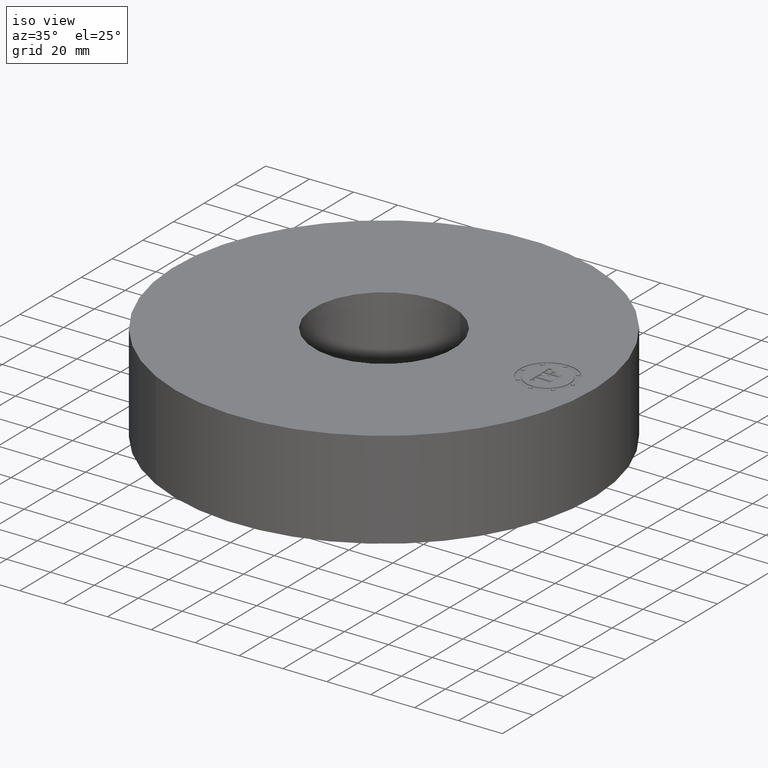
[diagram: clean part render]
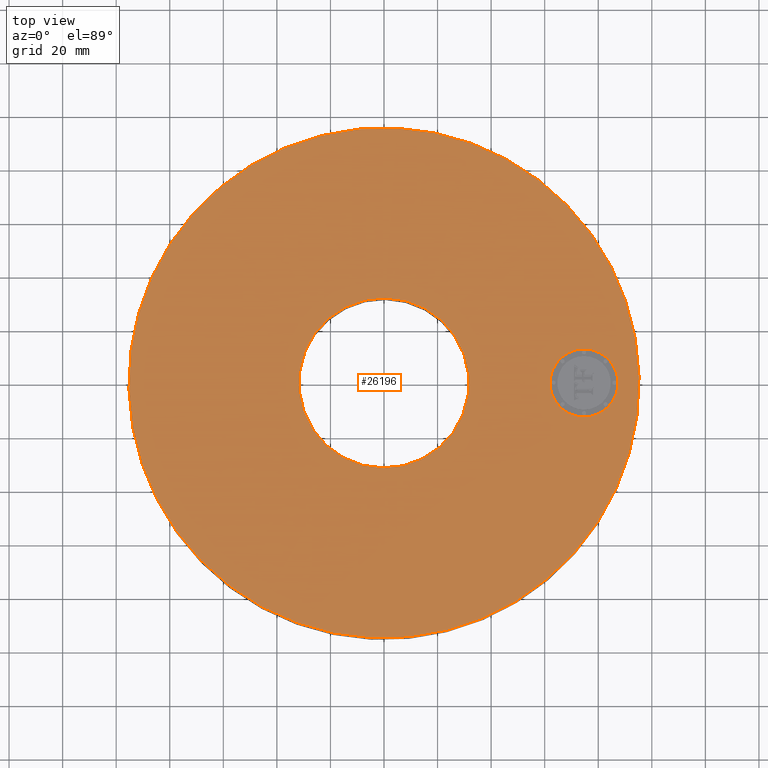
[diagram: tour spotlight — one face highlighted and labeled with its STEP entity id]
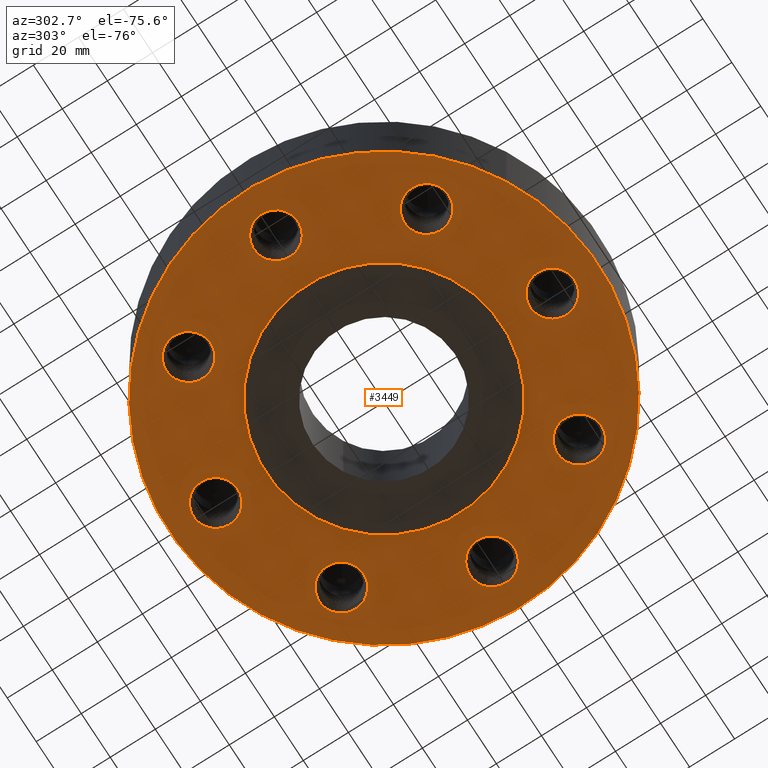
[diagram: tour spotlight — one face highlighted and labeled with its STEP entity id]
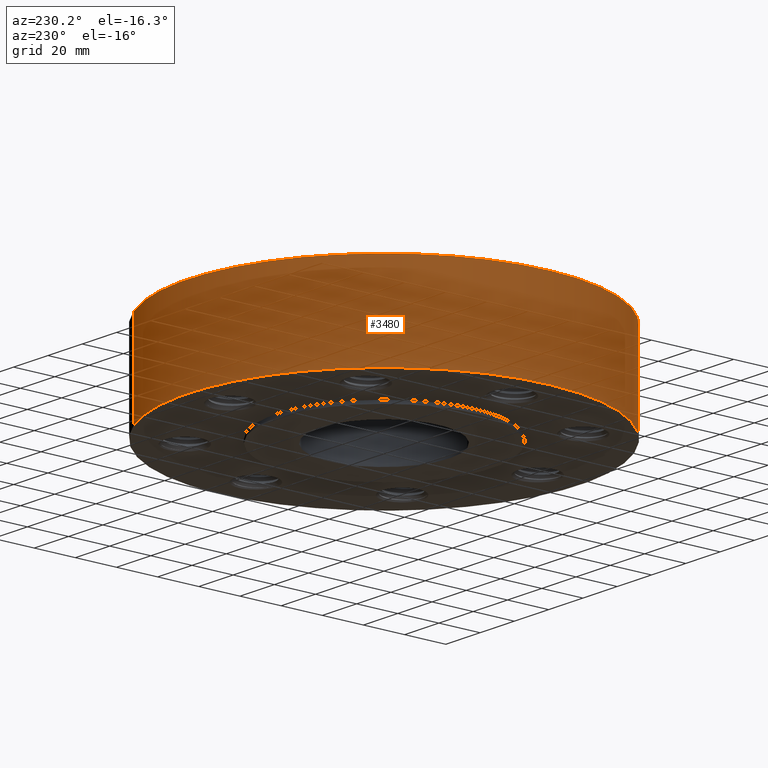
[diagram: tour spotlight — one face highlighted and labeled with its STEP entity id]
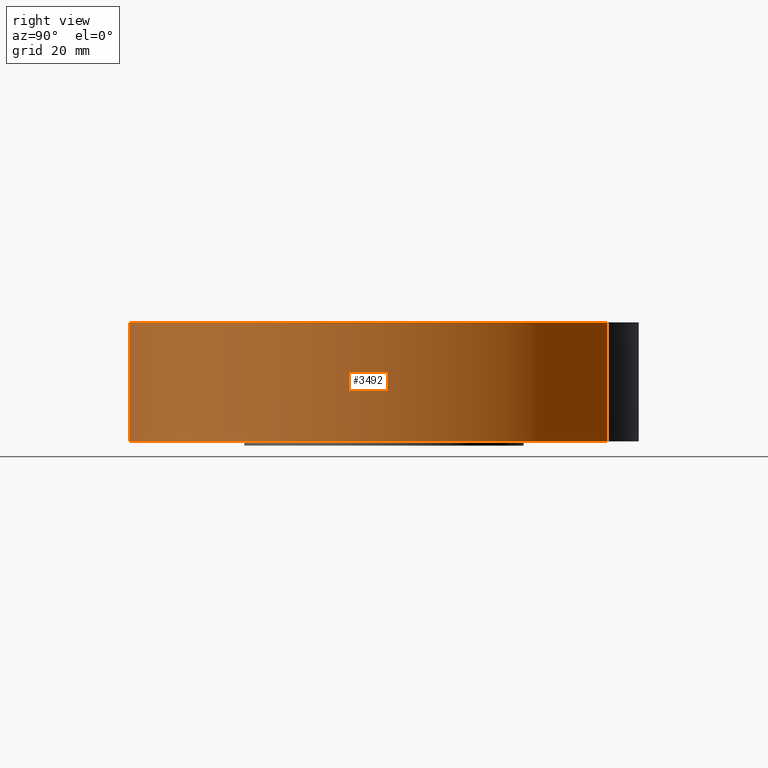
[diagram: tour spotlight — one face highlighted and labeled with its STEP entity id]
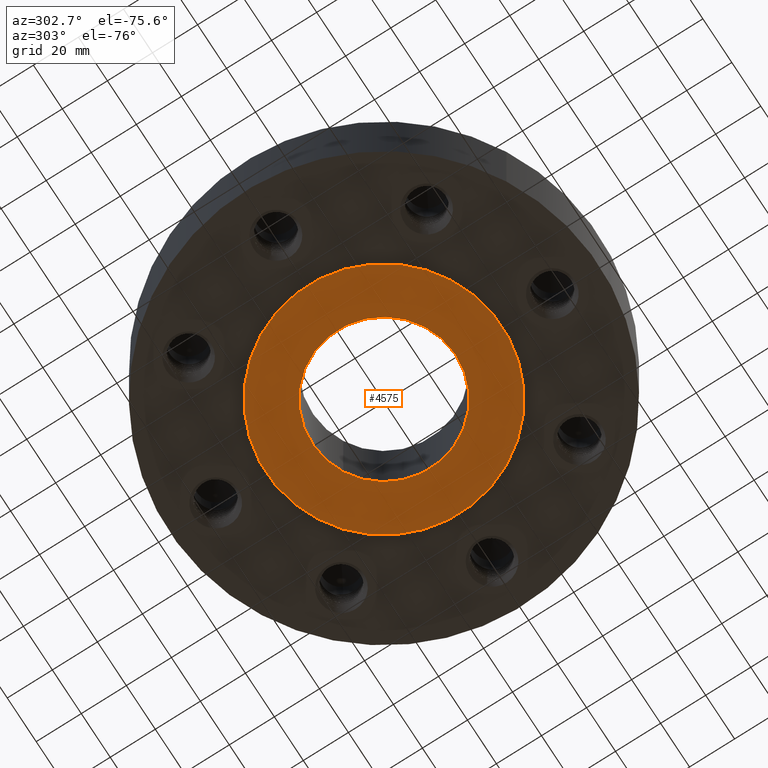
[diagram: tour spotlight — one face highlighted and labeled with its STEP entity id]
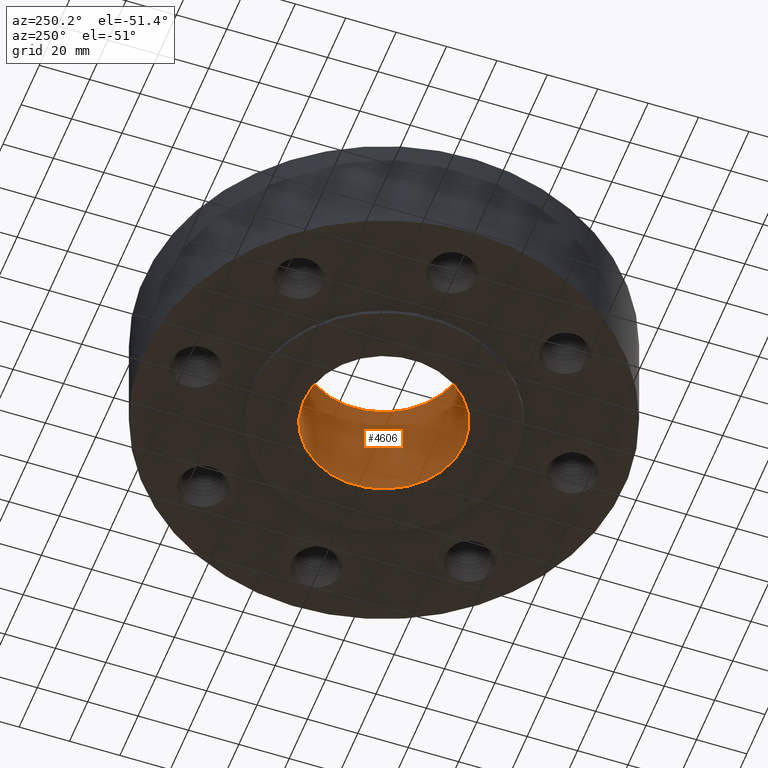
[diagram: tour spotlight — one face highlighted and labeled with its STEP entity id]
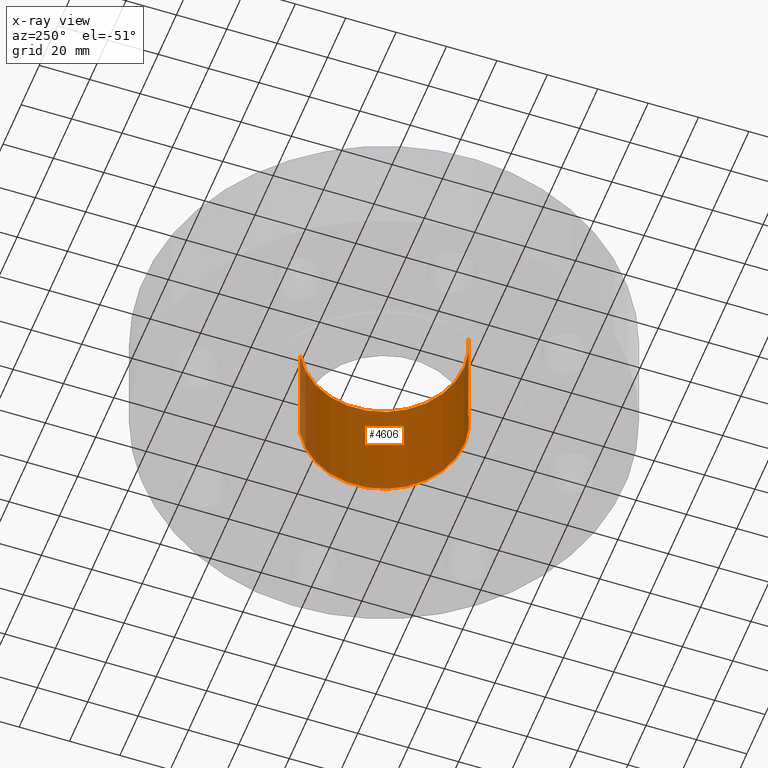
[diagram: x-ray of the same camera — body ghosted, this tour face saturated]
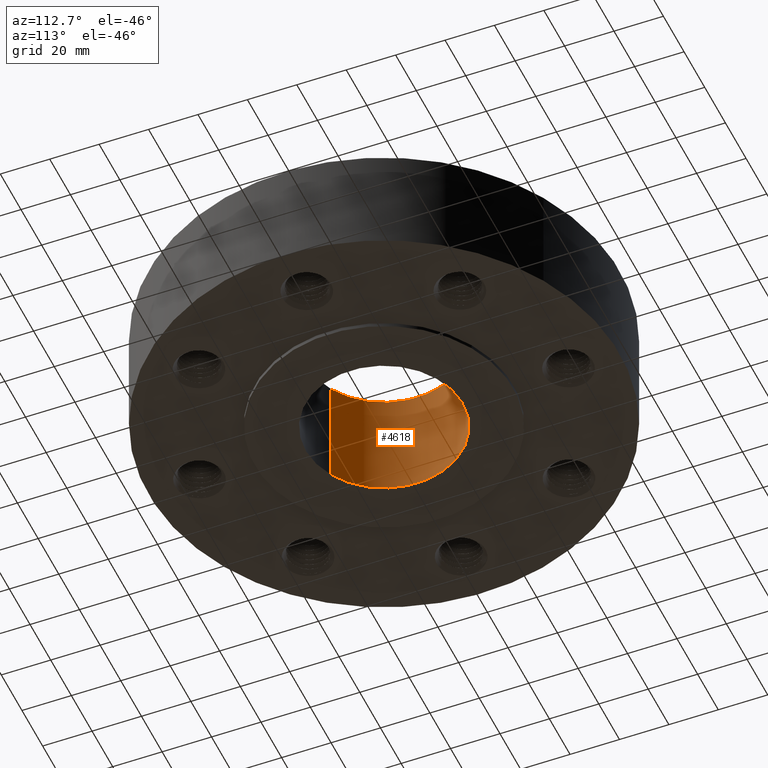
[diagram: tour spotlight — one face highlighted and labeled with its STEP entity id]
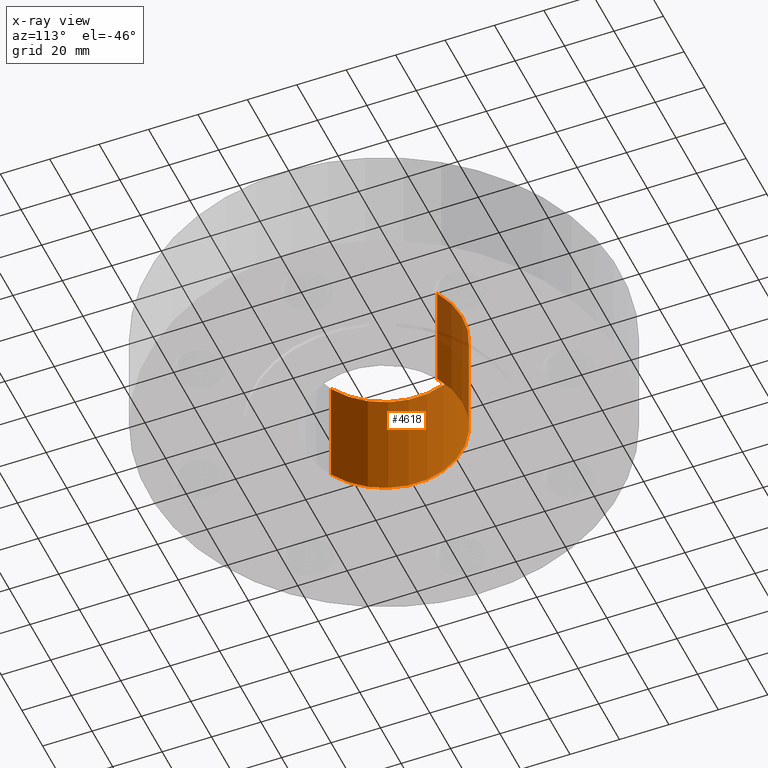
[diagram: x-ray of the same camera — body ghosted, this tour face saturated]
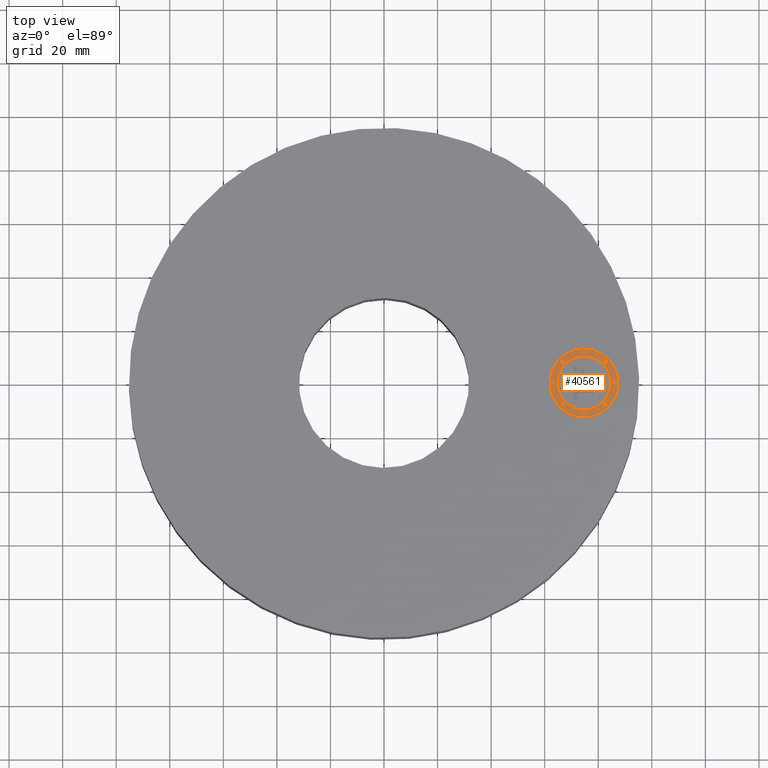
[diagram: tour spotlight — one face highlighted and labeled with its STEP entity id]
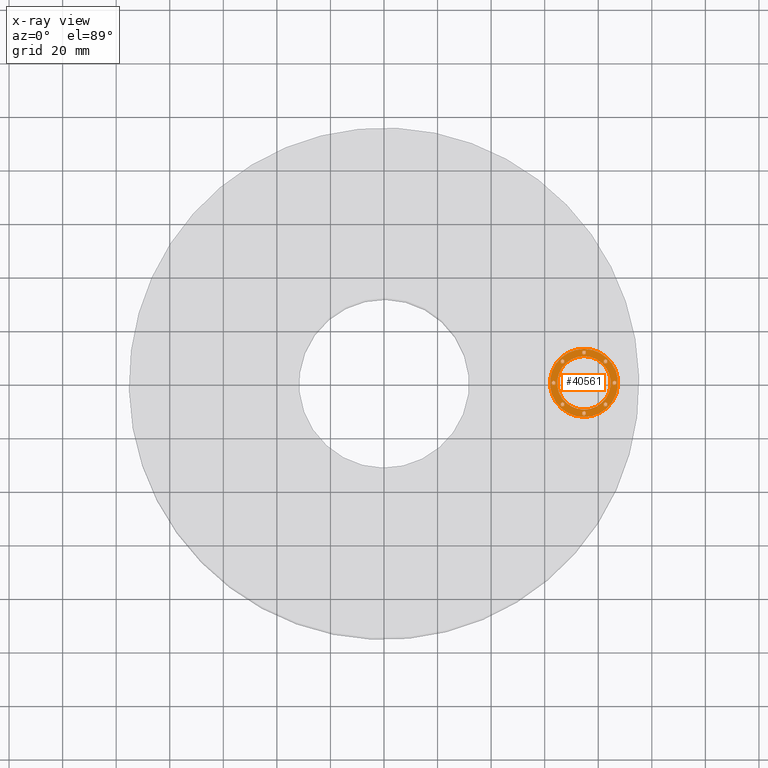
[diagram: x-ray of the same camera — body ghosted, this tour face saturated]
A machine part: a face-by-face anatomy tour. The part has 874 B-rep faces; the first image is the clean iso view, then the 8 largest visible faces are spotlighted one at a time (largest first), each with its STEP entity span.

Face 1 — top view, entity #26196. In plain terms, the highlighted planar face has unit normal (0, 0, -1).
Definition (entity closure, byte-faithful):
#3464=AXIS2_PLACEMENT_3D('Circle Axis2P3D',#3462,#3463,$) ;
#3483=AXIS2_PLACEMENT_3D('Circle Axis2P3D',#3481,#3482,$) ;
#4583=AXIS2_PLACEMENT_3D('Circle Axis2P3D',#4581,#4582,$) ;
#4609=AXIS2_PLACEMENT_3D('Circle Axis2P3D',#4607,#4608,$) ;
#26168=AXIS2_PLACEMENT_3D('Plane Axis2P3D',#26165,#26166,#26167) ;
#26180=AXIS2_PLACEMENT_3D('Circle Axis2P3D',#26178,#26179,$) ;
#26189=AXIS2_PLACEMENT_3D('Circle Axis2P3D',#26187,#26188,$) ;
#3459=CARTESIAN_POINT('Vertex',(-1.79784576977,-3.2909346071,1.75000000001)) ;
#3462=CARTESIAN_POINT('Axis2P3D Location',(0.,0.,1.75000000001)) ;
#3466=CARTESIAN_POINT('Vertex',(1.79784576977,3.2909346071,1.75000000001)) ;
#3481=CARTESIAN_POINT('Axis2P3D Location',(0.,0.,1.75000000001)) ;
#4581=CARTESIAN_POINT('Axis2P3D Location',(0.,0.,1.75000000001)) ;
#4585=CARTESIAN_POINT('Vertex',(0.599281923258,1.09697820237,1.75000000001)) ;
#4587=CARTESIAN_POINT('Vertex',(-0.599281923258,-1.09697820237,1.75000000001)) ;
#4607=CARTESIAN_POINT('Axis2P3D Location',(0.,0.,1.75000000001)) ;
#26165=CARTESIAN_POINT('Axis2P3D Location',(0.,1.25000000001,1.75000000001)) ;
#26178=CARTESIAN_POINT('Axis2P3D Location',(2.94000000001,0.,1.75000000001)) ;
#26182=CARTESIAN_POINT('Vertex',(2.94000000001,-0.499999995002,1.75000000001)) ;
#26184=CARTESIAN_POINT('Vertex',(2.94000000001,0.499999995002,1.75000000001)) ;
#26187=CARTESIAN_POINT('Axis2P3D Location',(2.94000000001,0.,1.75000000001)) ;
#3463=DIRECTION('Axis2P3D Direction',(0.,0.,-0.0393700787402)) ;
#3482=DIRECTION('Axis2P3D Direction',(0.,0.,-0.0393700787402)) ;
#4582=DIRECTION('Axis2P3D Direction',(0.,0.,-0.0393700787402)) ;
#4608=DIRECTION('Axis2P3D Direction',(0.,0.,-0.0393700787402)) ;
#26166=DIRECTION('Axis2P3D Direction',(0.,0.,-0.0393700787402)) ;
#26167=DIRECTION('Axis2P3D XDirection',(0.0393700787402,0.,0.)) ;
#26179=DIRECTION('Axis2P3D Direction',(0.,0.,-0.0393700787402)) ;
#26188=DIRECTION('Axis2P3D Direction',(0.,0.,-0.0393700787402)) ;
#26171=ORIENTED_EDGE('',*,*,#3485,.F.) ;
#26172=ORIENTED_EDGE('',*,*,#3468,.F.) ;
#26175=ORIENTED_EDGE('',*,*,#4611,.T.) ;
#26176=ORIENTED_EDGE('',*,*,#4589,.T.) ;
#26193=ORIENTED_EDGE('',*,*,#26186,.F.) ;
#26194=ORIENTED_EDGE('',*,*,#26191,.F.) ;
#26177=FACE_BOUND('',#26174,.T.) ;
#26195=FACE_BOUND('',#26192,.T.) ;
#26196=ADVANCED_FACE('PartBody',(#26173,#26177,#26195),#26169,.F.) ;
#3465=CIRCLE('generated circle',#3464,3.75000000002) ;
#3484=CIRCLE('generated circle',#3483,3.75000000002) ;
#4584=CIRCLE('generated circle',#4583,1.25000000001) ;
#4610=CIRCLE('generated circle',#4609,1.25000000001) ;
#26181=CIRCLE('generated circle',#26180,0.499999995002) ;
#26190=CIRCLE('generated circle',#26189,0.499999995002) ;
#3468=EDGE_CURVE('',#3460,#3467,#3465,.T.) ;
#3485=EDGE_CURVE('',#3467,#3460,#3484,.T.) ;
#4589=EDGE_CURVE('',#4586,#4588,#4584,.T.) ;
#4611=EDGE_CURVE('',#4588,#4586,#4610,.T.) ;
#26186=EDGE_CURVE('',#26183,#26185,#26181,.F.) ;
#26191=EDGE_CURVE('',#26185,#26183,#26190,.F.) ;
#26170=EDGE_LOOP('',(#26171,#26172)) ;
#26174=EDGE_LOOP('',(#26175,#26176)) ;
#26192=EDGE_LOOP('',(#26193,#26194)) ;
#26173=FACE_OUTER_BOUND('',#26170,.T.) ;
#26169=PLANE('',#26168) ;
#3460=VERTEX_POINT('',#3459) ;
#3467=VERTEX_POINT('',#3466) ;
#4586=VERTEX_POINT('',#4585) ;
#4588=VERTEX_POINT('',#4587) ;
#26183=VERTEX_POINT('',#26182) ;
#26185=VERTEX_POINT('',#26184) ;

Face 2 — auxiliary view, entity #3449. In plain terms, the highlighted planar face has unit normal (0, 0, -1).
Definition (entity closure, byte-faithful):
#3203=AXIS2_PLACEMENT_3D('Circle Axis2P3D',#3201,#3202,$) ;
#3267=AXIS2_PLACEMENT_3D('Circle Axis2P3D',#3265,#3266,$) ;
#3281=AXIS2_PLACEMENT_3D('Plane Axis2P3D',#3278,#3279,#3280) ;
#3285=AXIS2_PLACEMENT_3D('Circle Axis2P3D',#3283,#3284,$) ;
#3294=AXIS2_PLACEMENT_3D('Circle Axis2P3D',#3292,#3293,$) ;
#3307=AXIS2_PLACEMENT_3D('Circle Axis2P3D',#3305,#3306,$) ;
#3316=AXIS2_PLACEMENT_3D('Circle Axis2P3D',#3314,#3315,$) ;
#3325=AXIS2_PLACEMENT_3D('Circle Axis2P3D',#3323,#3324,$) ;
#3334=AXIS2_PLACEMENT_3D('Circle Axis2P3D',#3332,#3333,$) ;
#3343=AXIS2_PLACEMENT_3D('Circle Axis2P3D',#3341,#3342,$) ;
#3352=AXIS2_PLACEMENT_3D('Circle Axis2P3D',#3350,#3351,$) ;
#3361=AXIS2_PLACEMENT_3D('Circle Axis2P3D',#3359,#3360,$) ;
#3370=AXIS2_PLACEMENT_3D('Circle Axis2P3D',#3368,#3369,$) ;
#3379=AXIS2_PLACEMENT_3D('Circle Axis2P3D',#3377,#3378,$) ;
#3388=AXIS2_PLACEMENT_3D('Circle Axis2P3D',#3386,#3387,$) ;
#3397=AXIS2_PLACEMENT_3D('Circle Axis2P3D',#3395,#3396,$) ;
#3406=AXIS2_PLACEMENT_3D('Circle Axis2P3D',#3404,#3405,$) ;
#3415=AXIS2_PLACEMENT_3D('Circle Axis2P3D',#3413,#3414,$) ;
#3424=AXIS2_PLACEMENT_3D('Circle Axis2P3D',#3422,#3423,$) ;
#3433=AXIS2_PLACEMENT_3D('Circle Axis2P3D',#3431,#3432,$) ;
#3442=AXIS2_PLACEMENT_3D('Circle Axis2P3D',#3440,#3441,$) ;
#3198=CARTESIAN_POINT('Vertex',(2.41939597071,2.26491104568,-1.22386790116E-016)) ;
#3201=CARTESIAN_POINT('Axis2P3D Location',(2.0788939367,2.0788939367,0.)) ;
#3205=CARTESIAN_POINT('Vertex',(1.73839190268,1.89287682772,0.)) ;
#3265=CARTESIAN_POINT('Axis2P3D Location',(2.0788939367,2.0788939367,0.)) ;
#3278=CARTESIAN_POINT('Axis2P3D Location',(0.,3.75000000002,0.)) ;
#3283=CARTESIAN_POINT('Axis2P3D Location',(0.,0.,0.)) ;
#3287=CARTESIAN_POINT('Vertex',(-1.79784576977,-3.2909346071,-3.83245491335E-014)) ;
#3289=CARTESIAN_POINT('Vertex',(1.79784576977,3.2909346071,-3.83245491335E-014)) ;
#3292=CARTESIAN_POINT('Axis2P3D Location',(0.,0.,0.)) ;
#3305=CARTESIAN_POINT('Axis2P3D Location',(0.,0.,0.)) ;
#3309=CARTESIAN_POINT('Vertex',(0.987616609529,1.8078200775,-2.81139940724E-014)) ;
#3311=CARTESIAN_POINT('Vertex',(-0.987616609529,-1.8078200775,-2.81139940724E-014)) ;
#3314=CARTESIAN_POINT('Axis2P3D Location',(0.,0.,0.)) ;
#3323=CARTESIAN_POINT('Axis2P3D Location',(2.94000000001,1.1189649382E-015,0.)) ;
#3327=CARTESIAN_POINT('Vertex',(3.31230525645,-0.109237338084,0.)) ;
#3329=CARTESIAN_POINT('Vertex',(2.56769474358,0.109237338084,-8.74191357973E-018)) ;
#3332=CARTESIAN_POINT('Axis2P3D Location',(2.94000000001,1.1189649382E-015,0.)) ;
#3341=CARTESIAN_POINT('Axis2P3D Location',(2.0788939367,-2.0788939367,0.)) ;
#3345=CARTESIAN_POINT('Vertex',(2.26491104568,-2.41939597071,0.)) ;
#3347=CARTESIAN_POINT('Vertex',(1.89287682772,-1.73839190268,0.)) ;
#3350=CARTESIAN_POINT('Axis2P3D Location',(2.0788939367,-2.0788939367,0.)) ;
#3359=CARTESIAN_POINT('Axis2P3D Location',(1.04902962957E-016,-2.94000000001,0.)) ;
#3363=CARTESIAN_POINT('Vertex',(-0.109237338084,-3.31230525645,0.)) ;
#3365=CARTESIAN_POINT('Vertex',(0.109237338084,-2.56769474358,-8.74191357973E-018)) ;
#3368=CARTESIAN_POINT('Axis2P3D Location',(1.1189649382E-015,-2.94000000001,0.)) ;
#3377=CARTESIAN_POINT('Axis2P3D Location',(-2.0788939367,-2.0788939367,0.)) ;
#3381=CARTESIAN_POINT('Vertex',(-2.41939597071,-2.26491104568,0.)) ;
#3383=CARTESIAN_POINT('Vertex',(-1.73839190268,-1.89287682772,-8.74191357973E-018)) ;
#3386=CARTESIAN_POINT('Axis2P3D Location',(-2.0788939367,-2.0788939367,0.)) ;
#3395=CARTESIAN_POINT('Axis2P3D Location',(-2.94000000001,-5.59482469102E-016,0.)) ;
#3399=CARTESIAN_POINT('Vertex',(-3.31230525645,0.109237338084,0.)) ;
#3401=CARTESIAN_POINT('Vertex',(-2.56769474358,-0.109237338084,-8.74191357973E-018)) ;
#3404=CARTESIAN_POINT('Axis2P3D Location',(-2.94000000001,-5.59482469102E-016,0.)) ;
#3413=CARTESIAN_POINT('Axis2P3D Location',(-2.0788939367,2.0788939367,0.)) ;
#3417=CARTESIAN_POINT('Vertex',(-2.26491104568,2.41939597071,0.)) ;
#3419=CARTESIAN_POINT('Vertex',(-1.89287682772,1.73839190268,-8.74191357973E-018)) ;
#3422=CARTESIAN_POINT('Axis2P3D Location',(-2.0788939367,2.0788939367,0.)) ;
#3431=CARTESIAN_POINT('Axis2P3D Location',(-1.15393259252E-015,2.94000000001,0.)) ;
#3435=CARTESIAN_POINT('Vertex',(0.109237338084,3.31230525645,0.)) ;
#3437=CARTESIAN_POINT('Vertex',(-0.109237338084,2.56769474358,0.)) ;
#3440=CARTESIAN_POINT('Axis2P3D Location',(-1.46864148139E-015,2.94000000001,0.)) ;
#3202=DIRECTION('Axis2P3D Direction',(0.,0.,-0.0393700787402)) ;
#3266=DIRECTION('Axis2P3D Direction',(0.,0.,-0.0393700787402)) ;
#3279=DIRECTION('Axis2P3D Direction',(0.,0.,-0.0393700787402)) ;
#3280=DIRECTION('Axis2P3D XDirection',(0.0393700787402,0.,0.)) ;
#3284=DIRECTION('Axis2P3D Direction',(0.,0.,-0.0393700787402)) ;
#3293=DIRECTION('Axis2P3D Direction',(0.,0.,-0.0393700787402)) ;
#3306=DIRECTION('Axis2P3D Direction',(0.,0.,-0.0393700787402)) ;
#3315=DIRECTION('Axis2P3D Direction',(0.,0.,-0.0393700787402)) ;
#3324=DIRECTION('Axis2P3D Direction',(0.,0.,-0.0393700787402)) ;
#3333=DIRECTION('Axis2P3D Direction',(0.,0.,-0.0393700787402)) ;
#3342=DIRECTION('Axis2P3D Direction',(0.,0.,-0.0393700787402)) ;
#3351=DIRECTION('Axis2P3D Direction',(0.,0.,-0.0393700787402)) ;
#3360=DIRECTION('Axis2P3D Direction',(0.,0.,-0.0393700787402)) ;
#3369=DIRECTION('Axis2P3D Direction',(0.,0.,-0.0393700787402)) ;
#3378=DIRECTION('Axis2P3D Direction',(0.,0.,-0.0393700787402)) ;
#3387=DIRECTION('Axis2P3D Direction',(0.,0.,-0.0393700787402)) ;
#3396=DIRECTION('Axis2P3D Direction',(0.,0.,-0.0393700787402)) ;
#3405=DIRECTION('Axis2P3D Direction',(0.,0.,-0.0393700787402)) ;
#3414=DIRECTION('Axis2P3D Direction',(0.,0.,-0.0393700787402)) ;
#3423=DIRECTION('Axis2P3D Direction',(0.,0.,-0.0393700787402)) ;
#3432=DIRECTION('Axis2P3D Direction',(0.,0.,-0.0393700787402)) ;
#3441=DIRECTION('Axis2P3D Direction',(0.,0.,-0.0393700787402)) ;
#3298=ORIENTED_EDGE('',*,*,#3291,.T.) ;
#3299=ORIENTED_EDGE('',*,*,#3296,.T.) ;
#3302=ORIENTED_EDGE('',*,*,#3269,.F.) ;
#3303=ORIENTED_EDGE('',*,*,#3207,.F.) ;
#3320=ORIENTED_EDGE('',*,*,#3313,.F.) ;
#3321=ORIENTED_EDGE('',*,*,#3318,.F.) ;
#3338=ORIENTED_EDGE('',*,*,#3331,.F.) ;
#3339=ORIENTED_EDGE('',*,*,#3336,.F.) ;
#3356=ORIENTED_EDGE('',*,*,#3349,.F.) ;
#3357=ORIENTED_EDGE('',*,*,#3354,.F.) ;
#3374=ORIENTED_EDGE('',*,*,#3367,.F.) ;
#3375=ORIENTED_EDGE('',*,*,#3372,.F.) ;
#3392=ORIENTED_EDGE('',*,*,#3385,.F.) ;
#3393=ORIENTED_EDGE('',*,*,#3390,.F.) ;
#3410=ORIENTED_EDGE('',*,*,#3403,.F.) ;
#3411=ORIENTED_EDGE('',*,*,#3408,.F.) ;
#3428=ORIENTED_EDGE('',*,*,#3421,.F.) ;
#3429=ORIENTED_EDGE('',*,*,#3426,.F.) ;
#3446=ORIENTED_EDGE('',*,*,#3439,.F.) ;
#3447=ORIENTED_EDGE('',*,*,#3444,.F.) ;
#3304=FACE_BOUND('',#3301,.T.) ;
#3322=FACE_BOUND('',#3319,.T.) ;
#3340=FACE_BOUND('',#3337,.T.) ;
#3358=FACE_BOUND('',#3355,.T.) ;
#3376=FACE_BOUND('',#3373,.T.) ;
#3394=FACE_BOUND('',#3391,.T.) ;
#3412=FACE_BOUND('',#3409,.T.) ;
#3430=FACE_BOUND('',#3427,.T.) ;
#3448=FACE_BOUND('',#3445,.T.) ;
#3449=ADVANCED_FACE('PartBody',(#3300,#3304,#3322,#3340,#3358,#3376,#3394,#3412,#3430,#3448),#3282,.T.) ;
#3204=CIRCLE('generated circle',#3203,0.388000000002) ;
#3268=CIRCLE('generated circle',#3267,0.388000000002) ;
#3286=CIRCLE('generated circle',#3285,3.75000000002) ;
#3295=CIRCLE('generated circle',#3294,3.75000000002) ;
#3308=CIRCLE('generated circle',#3307,2.06000000001) ;
#3317=CIRCLE('generated circle',#3316,2.06000000001) ;
#3326=CIRCLE('generated circle',#3325,0.388000000002) ;
#3335=CIRCLE('generated circle',#3334,0.388000000002) ;
#3344=CIRCLE('generated circle',#3343,0.388000000002) ;
#3353=CIRCLE('generated circle',#3352,0.388000000002) ;
#3362=CIRCLE('generated circle',#3361,0.388000000002) ;
#3371=CIRCLE('generated circle',#3370,0.388000000002) ;
#3380=CIRCLE('generated circle',#3379,0.388000000002) ;
#3389=CIRCLE('generated circle',#3388,0.388000000002) ;
#3398=CIRCLE('generated circle',#3397,0.388000000002) ;
#3407=CIRCLE('generated circle',#3406,0.388000000002) ;
#3416=CIRCLE('generated circle',#3415,0.388000000002) ;
#3425=CIRCLE('generated circle',#3424,0.388000000002) ;
#3434=CIRCLE('generated circle',#3433,0.388000000002) ;
#3443=CIRCLE('generated circle',#3442,0.388000000002) ;
#3207=EDGE_CURVE('',#3199,#3206,#3204,.T.) ;
#3269=EDGE_CURVE('',#3206,#3199,#3268,.T.) ;
#3291=EDGE_CURVE('',#3288,#3290,#3286,.T.) ;
#3296=EDGE_CURVE('',#3290,#3288,#3295,.T.) ;
#3313=EDGE_CURVE('',#3310,#3312,#3308,.T.) ;
#3318=EDGE_CURVE('',#3312,#3310,#3317,.T.) ;
#3331=EDGE_CURVE('',#3328,#3330,#3326,.T.) ;
#3336=EDGE_CURVE('',#3330,#3328,#3335,.T.) ;
#3349=EDGE_CURVE('',#3346,#3348,#3344,.T.) ;
#3354=EDGE_CURVE('',#3348,#3346,#3353,.T.) ;
#3367=EDGE_CURVE('',#3364,#3366,#3362,.T.) ;
#3372=EDGE_CURVE('',#3366,#3364,#3371,.T.) ;
#3385=EDGE_CURVE('',#3382,#3384,#3380,.T.) ;
#3390=EDGE_CURVE('',#3384,#3382,#3389,.T.) ;
#3403=EDGE_CURVE('',#3400,#3402,#3398,.T.) ;
#3408=EDGE_CURVE('',#3402,#3400,#3407,.T.) ;
#3421=EDGE_CURVE('',#3418,#3420,#3416,.T.) ;
#3426=EDGE_CURVE('',#3420,#3418,#3425,.T.) ;
#3439=EDGE_CURVE('',#3436,#3438,#3434,.T.) ;
#3444=EDGE_CURVE('',#3438,#3436,#3443,.T.) ;
#3297=EDGE_LOOP('',(#3298,#3299)) ;
#3301=EDGE_LOOP('',(#3302,#3303)) ;
#3319=EDGE_LOOP('',(#3320,#3321)) ;
#3337=EDGE_LOOP('',(#3338,#3339)) ;
#3355=EDGE_LOOP('',(#3356,#3357)) ;
#3373=EDGE_LOOP('',(#3374,#3375)) ;
#3391=EDGE_LOOP('',(#3392,#3393)) ;
#3409=EDGE_LOOP('',(#3410,#3411)) ;
#3427=EDGE_LOOP('',(#3428,#3429)) ;
#3445=EDGE_LOOP('',(#3446,#3447)) ;
#3300=FACE_OUTER_BOUND('',#3297,.T.) ;
#3282=PLANE('',#3281) ;
#3199=VERTEX_POINT('',#3198) ;
#3206=VERTEX_POINT('',#3205) ;
#3288=VERTEX_POINT('',#3287) ;
#3290=VERTEX_POINT('',#3289) ;
#3310=VERTEX_POINT('',#3309) ;
#3312=VERTEX_POINT('',#3311) ;
#3328=VERTEX_POINT('',#3327) ;
#3330=VERTEX_POINT('',#3329) ;
#3346=VERTEX_POINT('',#3345) ;
#3348=VERTEX_POINT('',#3347) ;
#3364=VERTEX_POINT('',#3363) ;
#3366=VERTEX_POINT('',#3365) ;
#3382=VERTEX_POINT('',#3381) ;
#3384=VERTEX_POINT('',#3383) ;
#3400=VERTEX_POINT('',#3399) ;
#3402=VERTEX_POINT('',#3401) ;
#3418=VERTEX_POINT('',#3417) ;
#3420=VERTEX_POINT('',#3419) ;
#3436=VERTEX_POINT('',#3435) ;
#3438=VERTEX_POINT('',#3437) ;

Face 3 — auxiliary view, entity #3480. In plain terms, the highlighted cylindrical surface (partial cylindrical patch) has radius 95.25 mm, axis along (0, 0, -1).
Definition (entity closure, byte-faithful):
#3285=AXIS2_PLACEMENT_3D('Circle Axis2P3D',#3283,#3284,$) ;
#3453=AXIS2_PLACEMENT_3D('Cylinder Axis2P3D',#3450,#3451,#3452) ;
#3464=AXIS2_PLACEMENT_3D('Circle Axis2P3D',#3462,#3463,$) ;
#3283=CARTESIAN_POINT('Axis2P3D Location',(0.,0.,0.)) ;
#3287=CARTESIAN_POINT('Vertex',(-1.79784576977,-3.2909346071,-3.83245491335E-014)) ;
#3289=CARTESIAN_POINT('Vertex',(1.79784576977,3.2909346071,-3.83245491335E-014)) ;
#3450=CARTESIAN_POINT('Axis2P3D Location',(0.,0.,0.843750000003)) ;
#3455=CARTESIAN_POINT('Line Origine',(-1.79784576977,-3.2909346071,0.875000000003)) ;
#3459=CARTESIAN_POINT('Vertex',(-1.79784576977,-3.2909346071,1.75000000001)) ;
#3462=CARTESIAN_POINT('Axis2P3D Location',(0.,0.,1.75000000001)) ;
#3466=CARTESIAN_POINT('Vertex',(1.79784576977,3.2909346071,1.75000000001)) ;
#3469=CARTESIAN_POINT('Line Origine',(1.79784576977,3.2909346071,0.875000000003)) ;
#3284=DIRECTION('Axis2P3D Direction',(0.,0.,-0.0393700787402)) ;
#3451=DIRECTION('Axis2P3D Direction',(0.,0.,-0.0393700787402)) ;
#3452=DIRECTION('Axis2P3D XDirection',(0.0188750212049,0.0345504945626,0.)) ;
#3456=DIRECTION('Vector Direction',(0.,0.,-0.0393700787402)) ;
#3463=DIRECTION('Axis2P3D Direction',(0.,0.,-0.0393700787402)) ;
#3470=DIRECTION('Vector Direction',(0.,0.,-0.0393700787402)) ;
#3457=VECTOR('Line Direction',#3456,0.0393700787402) ;
#3471=VECTOR('Line Direction',#3470,0.0393700787402) ;
#3475=ORIENTED_EDGE('',*,*,#3291,.F.) ;
#3476=ORIENTED_EDGE('',*,*,#3461,.T.) ;
#3477=ORIENTED_EDGE('',*,*,#3468,.T.) ;
#3478=ORIENTED_EDGE('',*,*,#3473,.F.) ;
#3480=ADVANCED_FACE('PartBody',(#3479),#3454,.T.) ;
#3286=CIRCLE('generated circle',#3285,3.75000000002) ;
#3465=CIRCLE('generated circle',#3464,3.75000000002) ;
#3454=CYLINDRICAL_SURFACE('generated cylinder',#3453,3.75000000002) ;
#3291=EDGE_CURVE('',#3288,#3290,#3286,.T.) ;
#3461=EDGE_CURVE('',#3288,#3460,#3458,.F.) ;
#3468=EDGE_CURVE('',#3460,#3467,#3465,.T.) ;
#3473=EDGE_CURVE('',#3290,#3467,#3472,.F.) ;
#3474=EDGE_LOOP('',(#3475,#3476,#3477,#3478)) ;
#3479=FACE_OUTER_BOUND('',#3474,.T.) ;
#3458=LINE('Line',#3455,#3457) ;
#3472=LINE('Line',#3469,#3471) ;
#3288=VERTEX_POINT('',#3287) ;
#3290=VERTEX_POINT('',#3289) ;
#3460=VERTEX_POINT('',#3459) ;
#3467=VERTEX_POINT('',#3466) ;

Face 4 — right view, entity #3492. In plain terms, the highlighted cylindrical surface (partial cylindrical patch) has radius 95.25 mm, axis along (0, 0, -1).
Definition (entity closure, byte-faithful):
#3294=AXIS2_PLACEMENT_3D('Circle Axis2P3D',#3292,#3293,$) ;
#3453=AXIS2_PLACEMENT_3D('Cylinder Axis2P3D',#3450,#3451,#3452) ;
#3483=AXIS2_PLACEMENT_3D('Circle Axis2P3D',#3481,#3482,$) ;
#3287=CARTESIAN_POINT('Vertex',(-1.79784576977,-3.2909346071,-3.83245491335E-014)) ;
#3289=CARTESIAN_POINT('Vertex',(1.79784576977,3.2909346071,-3.83245491335E-014)) ;
#3292=CARTESIAN_POINT('Axis2P3D Location',(0.,0.,0.)) ;
#3450=CARTESIAN_POINT('Axis2P3D Location',(0.,0.,0.843750000003)) ;
#3455=CARTESIAN_POINT('Line Origine',(-1.79784576977,-3.2909346071,0.875000000003)) ;
#3459=CARTESIAN_POINT('Vertex',(-1.79784576977,-3.2909346071,1.75000000001)) ;
#3466=CARTESIAN_POINT('Vertex',(1.79784576977,3.2909346071,1.75000000001)) ;
#3469=CARTESIAN_POINT('Line Origine',(1.79784576977,3.2909346071,0.875000000003)) ;
#3481=CARTESIAN_POINT('Axis2P3D Location',(0.,0.,1.75000000001)) ;
#3293=DIRECTION('Axis2P3D Direction',(0.,0.,-0.0393700787402)) ;
#3451=DIRECTION('Axis2P3D Direction',(0.,0.,-0.0393700787402)) ;
#3452=DIRECTION('Axis2P3D XDirection',(0.0188750212049,0.0345504945626,0.)) ;
#3456=DIRECTION('Vector Direction',(0.,0.,-0.0393700787402)) ;
#3470=DIRECTION('Vector Direction',(0.,0.,-0.0393700787402)) ;
#3482=DIRECTION('Axis2P3D Direction',(0.,0.,-0.0393700787402)) ;
#3457=VECTOR('Line Direction',#3456,0.0393700787402) ;
#3471=VECTOR('Line Direction',#3470,0.0393700787402) ;
#3487=ORIENTED_EDGE('',*,*,#3296,.F.) ;
#3488=ORIENTED_EDGE('',*,*,#3473,.T.) ;
#3489=ORIENTED_EDGE('',*,*,#3485,.T.) ;
#3490=ORIENTED_EDGE('',*,*,#3461,.F.) ;
#3492=ADVANCED_FACE('PartBody',(#3491),#3454,.T.) ;
#3295=CIRCLE('generated circle',#3294,3.75000000002) ;
#3484=CIRCLE('generated circle',#3483,3.75000000002) ;
#3454=CYLINDRICAL_SURFACE('generated cylinder',#3453,3.75000000002) ;
#3296=EDGE_CURVE('',#3290,#3288,#3295,.T.) ;
#3461=EDGE_CURVE('',#3288,#3460,#3458,.F.) ;
#3473=EDGE_CURVE('',#3290,#3467,#3472,.F.) ;
#3485=EDGE_CURVE('',#3467,#3460,#3484,.T.) ;
#3486=EDGE_LOOP('',(#3487,#3488,#3489,#3490)) ;
#3491=FACE_OUTER_BOUND('',#3486,.T.) ;
#3458=LINE('Line',#3455,#3457) ;
#3472=LINE('Line',#3469,#3471) ;
#3288=VERTEX_POINT('',#3287) ;
#3290=VERTEX_POINT('',#3289) ;
#3460=VERTEX_POINT('',#3459) ;
#3467=VERTEX_POINT('',#3466) ;

Face 5 — auxiliary view, entity #4575. In plain terms, the highlighted planar face has unit normal (0, 0, -1).
Definition (entity closure, byte-faithful):
#3500=AXIS2_PLACEMENT_3D('Circle Axis2P3D',#3498,#3499,$) ;
#3526=AXIS2_PLACEMENT_3D('Circle Axis2P3D',#3524,#3525,$) ;
#4551=AXIS2_PLACEMENT_3D('Plane Axis2P3D',#4548,#4549,#4550) ;
#4559=AXIS2_PLACEMENT_3D('Circle Axis2P3D',#4557,#4558,$) ;
#4568=AXIS2_PLACEMENT_3D('Circle Axis2P3D',#4566,#4567,$) ;
#3498=CARTESIAN_POINT('Axis2P3D Location',(0.,0.,-0.0625000000003)) ;
#3502=CARTESIAN_POINT('Vertex',(0.987616609529,1.8078200775,-0.0625000000003)) ;
#3504=CARTESIAN_POINT('Vertex',(-0.987616609529,-1.8078200775,-0.0625000000003)) ;
#3524=CARTESIAN_POINT('Axis2P3D Location',(0.,0.,-0.0625000000003)) ;
#4548=CARTESIAN_POINT('Axis2P3D Location',(0.,2.06000000001,-0.0625000000003)) ;
#4557=CARTESIAN_POINT('Axis2P3D Location',(0.,0.,-0.0625000000003)) ;
#4561=CARTESIAN_POINT('Vertex',(0.599281923258,1.09697820237,-0.0625000000003)) ;
#4563=CARTESIAN_POINT('Vertex',(-0.599281923258,-1.09697820237,-0.0625000000003)) ;
#4566=CARTESIAN_POINT('Axis2P3D Location',(0.,0.,-0.0625000000003)) ;
#3499=DIRECTION('Axis2P3D Direction',(0.,0.,-0.0393700787402)) ;
#3525=DIRECTION('Axis2P3D Direction',(0.,0.,-0.0393700787402)) ;
#4549=DIRECTION('Axis2P3D Direction',(0.,0.,-0.0393700787402)) ;
#4550=DIRECTION('Axis2P3D XDirection',(0.0393700787402,0.,0.)) ;
#4558=DIRECTION('Axis2P3D Direction',(0.,0.,-0.0393700787402)) ;
#4567=DIRECTION('Axis2P3D Direction',(0.,0.,-0.0393700787402)) ;
#4554=ORIENTED_EDGE('',*,*,#3528,.T.) ;
#4555=ORIENTED_EDGE('',*,*,#3506,.T.) ;
#4572=ORIENTED_EDGE('',*,*,#4565,.F.) ;
#4573=ORIENTED_EDGE('',*,*,#4570,.F.) ;
#4574=FACE_BOUND('',#4571,.T.) ;
#4575=ADVANCED_FACE('PartBody',(#4556,#4574),#4552,.T.) ;
#3501=CIRCLE('generated circle',#3500,2.06000000001) ;
#3527=CIRCLE('generated circle',#3526,2.06000000001) ;
#4560=CIRCLE('generated circle',#4559,1.25000000001) ;
#4569=CIRCLE('generated circle',#4568,1.25000000001) ;
#3506=EDGE_CURVE('',#3503,#3505,#3501,.T.) ;
#3528=EDGE_CURVE('',#3505,#3503,#3527,.T.) ;
#4565=EDGE_CURVE('',#4562,#4564,#4560,.T.) ;
#4570=EDGE_CURVE('',#4564,#4562,#4569,.T.) ;
#4553=EDGE_LOOP('',(#4554,#4555)) ;
#4571=EDGE_LOOP('',(#4572,#4573)) ;
#4556=FACE_OUTER_BOUND('',#4553,.T.) ;
#4552=PLANE('',#4551) ;
#3503=VERTEX_POINT('',#3502) ;
#3505=VERTEX_POINT('',#3504) ;
#4562=VERTEX_POINT('',#4561) ;
#4564=VERTEX_POINT('',#4563) ;

Face 6 — auxiliary view, entity #4606. An x-ray twin of the same camera follows (body ghosted, this face saturated) — the face is partly hidden behind the body. In plain terms, the highlighted cylindrical surface (partial cylindrical patch) has radius 31.75 mm, axis along (0, 0, -1).
Definition (entity closure, byte-faithful):
#4559=AXIS2_PLACEMENT_3D('Circle Axis2P3D',#4557,#4558,$) ;
#4579=AXIS2_PLACEMENT_3D('Cylinder Axis2P3D',#4576,#4577,#4578) ;
#4583=AXIS2_PLACEMENT_3D('Circle Axis2P3D',#4581,#4582,$) ;
#4557=CARTESIAN_POINT('Axis2P3D Location',(0.,0.,-0.0625000000003)) ;
#4561=CARTESIAN_POINT('Vertex',(0.599281923258,1.09697820237,-0.0625000000003)) ;
#4563=CARTESIAN_POINT('Vertex',(-0.599281923258,-1.09697820237,-0.0625000000003)) ;
#4576=CARTESIAN_POINT('Axis2P3D Location',(0.,0.,0.843750000003)) ;
#4581=CARTESIAN_POINT('Axis2P3D Location',(0.,0.,1.75000000001)) ;
#4585=CARTESIAN_POINT('Vertex',(0.599281923258,1.09697820237,1.75000000001)) ;
#4587=CARTESIAN_POINT('Vertex',(-0.599281923258,-1.09697820237,1.75000000001)) ;
#4590=CARTESIAN_POINT('Line Origine',(0.599281923258,1.09697820237,0.843750000003)) ;
#4595=CARTESIAN_POINT('Line Origine',(-0.599281923258,-1.09697820237,0.843750000003)) ;
#4558=DIRECTION('Axis2P3D Direction',(0.,0.,-0.0393700787402)) ;
#4577=DIRECTION('Axis2P3D Direction',(0.,0.,-0.0393700787402)) ;
#4578=DIRECTION('Axis2P3D XDirection',(-0.0188750212049,-0.0345504945626,0.)) ;
#4582=DIRECTION('Axis2P3D Direction',(0.,0.,-0.0393700787402)) ;
#4591=DIRECTION('Vector Direction',(0.,0.,-0.0393700787402)) ;
#4596=DIRECTION('Vector Direction',(0.,0.,-0.0393700787402)) ;
#4592=VECTOR('Line Direction',#4591,0.0393700787402) ;
#4597=VECTOR('Line Direction',#4596,0.0393700787402) ;
#4601=ORIENTED_EDGE('',*,*,#4589,.F.) ;
#4602=ORIENTED_EDGE('',*,*,#4594,.T.) ;
#4603=ORIENTED_EDGE('',*,*,#4565,.T.) ;
#4604=ORIENTED_EDGE('',*,*,#4599,.F.) ;
#4606=ADVANCED_FACE('PartBody',(#4605),#4580,.F.) ;
#4560=CIRCLE('generated circle',#4559,1.25000000001) ;
#4584=CIRCLE('generated circle',#4583,1.25000000001) ;
#4580=CYLINDRICAL_SURFACE('generated cylinder',#4579,1.25000000001) ;
#4565=EDGE_CURVE('',#4562,#4564,#4560,.T.) ;
#4589=EDGE_CURVE('',#4586,#4588,#4584,.T.) ;
#4594=EDGE_CURVE('',#4586,#4562,#4593,.T.) ;
#4599=EDGE_CURVE('',#4588,#4564,#4598,.T.) ;
#4600=EDGE_LOOP('',(#4601,#4602,#4603,#4604)) ;
#4605=FACE_OUTER_BOUND('',#4600,.T.) ;
#4593=LINE('Line',#4590,#4592) ;
#4598=LINE('Line',#4595,#4597) ;
#4562=VERTEX_POINT('',#4561) ;
#4564=VERTEX_POINT('',#4563) ;
#4586=VERTEX_POINT('',#4585) ;
#4588=VERTEX_POINT('',#4587) ;

Face 7 — auxiliary view, entity #4618. An x-ray twin of the same camera follows (body ghosted, this face saturated) — the face is partly hidden behind the body. In plain terms, the highlighted cylindrical surface (partial cylindrical patch) has radius 31.75 mm, axis along (0, 0, -1).
Definition (entity closure, byte-faithful):
#4568=AXIS2_PLACEMENT_3D('Circle Axis2P3D',#4566,#4567,$) ;
#4579=AXIS2_PLACEMENT_3D('Cylinder Axis2P3D',#4576,#4577,#4578) ;
#4609=AXIS2_PLACEMENT_3D('Circle Axis2P3D',#4607,#4608,$) ;
#4561=CARTESIAN_POINT('Vertex',(0.599281923258,1.09697820237,-0.0625000000003)) ;
#4563=CARTESIAN_POINT('Vertex',(-0.599281923258,-1.09697820237,-0.0625000000003)) ;
#4566=CARTESIAN_POINT('Axis2P3D Location',(0.,0.,-0.0625000000003)) ;
#4576=CARTESIAN_POINT('Axis2P3D Location',(0.,0.,0.843750000003)) ;
#4585=CARTESIAN_POINT('Vertex',(0.599281923258,1.09697820237,1.75000000001)) ;
#4587=CARTESIAN_POINT('Vertex',(-0.599281923258,-1.09697820237,1.75000000001)) ;
#4590=CARTESIAN_POINT('Line Origine',(0.599281923258,1.09697820237,0.843750000003)) ;
#4595=CARTESIAN_POINT('Line Origine',(-0.599281923258,-1.09697820237,0.843750000003)) ;
#4607=CARTESIAN_POINT('Axis2P3D Location',(0.,0.,1.75000000001)) ;
#4567=DIRECTION('Axis2P3D Direction',(0.,0.,-0.0393700787402)) ;
#4577=DIRECTION('Axis2P3D Direction',(0.,0.,-0.0393700787402)) ;
#4578=DIRECTION('Axis2P3D XDirection',(-0.0188750212049,-0.0345504945626,0.)) ;
#4591=DIRECTION('Vector Direction',(0.,0.,-0.0393700787402)) ;
#4596=DIRECTION('Vector Direction',(0.,0.,-0.0393700787402)) ;
#4608=DIRECTION('Axis2P3D Direction',(0.,0.,-0.0393700787402)) ;
#4592=VECTOR('Line Direction',#4591,0.0393700787402) ;
#4597=VECTOR('Line Direction',#4596,0.0393700787402) ;
#4613=ORIENTED_EDGE('',*,*,#4611,.F.) ;
#4614=ORIENTED_EDGE('',*,*,#4599,.T.) ;
#4615=ORIENTED_EDGE('',*,*,#4570,.T.) ;
#4616=ORIENTED_EDGE('',*,*,#4594,.F.) ;
#4618=ADVANCED_FACE('PartBody',(#4617),#4580,.F.) ;
#4569=CIRCLE('generated circle',#4568,1.25000000001) ;
#4610=CIRCLE('generated circle',#4609,1.25000000001) ;
#4580=CYLINDRICAL_SURFACE('generated cylinder',#4579,1.25000000001) ;
#4570=EDGE_CURVE('',#4564,#4562,#4569,.T.) ;
#4594=EDGE_CURVE('',#4586,#4562,#4593,.T.) ;
#4599=EDGE_CURVE('',#4588,#4564,#4598,.T.) ;
#4611=EDGE_CURVE('',#4588,#4586,#4610,.T.) ;
#4612=EDGE_LOOP('',(#4613,#4614,#4615,#4616)) ;
#4617=FACE_OUTER_BOUND('',#4612,.T.) ;
#4593=LINE('Line',#4590,#4592) ;
#4598=LINE('Line',#4595,#4597) ;
#4562=VERTEX_POINT('',#4561) ;
#4564=VERTEX_POINT('',#4563) ;
#4586=VERTEX_POINT('',#4585) ;
#4588=VERTEX_POINT('',#4587) ;

Face 8 — top view, entity #40561. An x-ray twin of the same camera follows (body ghosted, this face saturated) — the face is partly hidden behind the body. In plain terms, the highlighted planar face has unit normal (0, 0, 1).
Definition (entity closure, byte-faithful):
#29208=AXIS2_PLACEMENT_3D('Plane Axis2P3D',#29205,#29206,#29207) ;
#40359=AXIS2_PLACEMENT_3D('Circle Axis2P3D',#40357,#40358,$) ;
#40378=AXIS2_PLACEMENT_3D('Circle Axis2P3D',#40376,#40377,$) ;
#40401=AXIS2_PLACEMENT_3D('Circle Axis2P3D',#40399,#40400,$) ;
#40410=AXIS2_PLACEMENT_3D('Circle Axis2P3D',#40408,#40409,$) ;
#40419=AXIS2_PLACEMENT_3D('Circle Axis2P3D',#40417,#40418,$) ;
#40428=AXIS2_PLACEMENT_3D('Circle Axis2P3D',#40426,#40427,$) ;
#40437=AXIS2_PLACEMENT_3D('Circle Axis2P3D',#40435,#40436,$) ;
#40446=AXIS2_PLACEMENT_3D('Circle Axis2P3D',#40444,#40445,$) ;
#40455=AXIS2_PLACEMENT_3D('Circle Axis2P3D',#40453,#40454,$) ;
#40464=AXIS2_PLACEMENT_3D('Circle Axis2P3D',#40462,#40463,$) ;
#40473=AXIS2_PLACEMENT_3D('Circle Axis2P3D',#40471,#40472,$) ;
#40482=AXIS2_PLACEMENT_3D('Circle Axis2P3D',#40480,#40481,$) ;
#40491=AXIS2_PLACEMENT_3D('Circle Axis2P3D',#40489,#40490,$) ;
#40500=AXIS2_PLACEMENT_3D('Circle Axis2P3D',#40498,#40499,$) ;
#40509=AXIS2_PLACEMENT_3D('Circle Axis2P3D',#40507,#40508,$) ;
#40518=AXIS2_PLACEMENT_3D('Circle Axis2P3D',#40516,#40517,$) ;
#40527=AXIS2_PLACEMENT_3D('Circle Axis2P3D',#40525,#40526,$) ;
#40536=AXIS2_PLACEMENT_3D('Circle Axis2P3D',#40534,#40535,$) ;
#40545=AXIS2_PLACEMENT_3D('Circle Axis2P3D',#40543,#40544,$) ;
#40554=AXIS2_PLACEMENT_3D('Circle Axis2P3D',#40552,#40553,$) ;
#29205=CARTESIAN_POINT('Axis2P3D Location',(0.,0.,1.73500000001)) ;
#40347=CARTESIAN_POINT('Vertex',(2.94000000001,0.499999995002,1.73500000001)) ;
#40354=CARTESIAN_POINT('Vertex',(2.94000000001,-0.499999995002,1.73500000001)) ;
#40357=CARTESIAN_POINT('Axis2P3D Location',(2.94000000001,0.,1.73500000001)) ;
#40376=CARTESIAN_POINT('Axis2P3D Location',(2.94000000001,0.,1.73500000001)) ;
#40399=CARTESIAN_POINT('Axis2P3D Location',(2.94000000001,0.,1.73500000001)) ;
#40403=CARTESIAN_POINT('Vertex',(2.94000000001,-0.393939390002,1.73500000001)) ;
#40405=CARTESIAN_POINT('Vertex',(2.94000000001,0.393939390002,1.73500000001)) ;
#40408=CARTESIAN_POINT('Axis2P3D Location',(2.94000000001,0.,1.73500000001)) ;
#40417=CARTESIAN_POINT('Axis2P3D Location',(2.49303030751,-1.27155105343E-015,1.73500000001)) ;
#40421=CARTESIAN_POINT('Vertex',(2.49303030751,-0.0303030300001,1.73500000001)) ;
#40423=CARTESIAN_POINT('Vertex',(2.49303030751,0.0303030300001,1.73500000001)) ;
#40426=CARTESIAN_POINT('Axis2P3D Location',(2.49303030751,-1.27155105343E-015,1.73500000001)) ;
#40435=CARTESIAN_POINT('Axis2P3D Location',(2.94000000001,0.446969692502,1.73500000001)) ;
#40439=CARTESIAN_POINT('Vertex',(2.94000000001,0.416666662502,1.73500000001)) ;
#40441=CARTESIAN_POINT('Vertex',(2.94000000001,0.477272722502,1.73500000001)) ;
#40444=CARTESIAN_POINT('Axis2P3D Location',(2.94000000001,0.446969692502,1.73500000001)) ;
#40453=CARTESIAN_POINT('Axis2P3D Location',(2.62394469946,0.316055300553,1.73500000001)) ;
#40457=CARTESIAN_POINT('Vertex',(2.62394469946,0.285752270553,1.73500000001)) ;
#40459=CARTESIAN_POINT('Vertex',(2.62394469946,0.346358330553,1.73500000001)) ;
#40462=CARTESIAN_POINT('Axis2P3D Location',(2.62394469946,0.316055300553,1.73500000001)) ;
#40471=CARTESIAN_POINT('Axis2P3D Location',(3.38696969251,1.17265263816E-014,1.73500000001)) ;
#40475=CARTESIAN_POINT('Vertex',(3.38696969251,-0.0303030300001,1.73500000001)) ;
#40477=CARTESIAN_POINT('Vertex',(3.38696969251,0.0303030300001,1.73500000001)) ;
#40480=CARTESIAN_POINT('Axis2P3D Location',(3.38696969251,1.17265263816E-014,1.73500000001)) ;
#40489=CARTESIAN_POINT('Axis2P3D Location',(3.25605530056,0.316055300553,1.73500000001)) ;
#40493=CARTESIAN_POINT('Vertex',(3.25605530056,0.285752270553,1.73500000001)) ;
#40495=CARTESIAN_POINT('Vertex',(3.25605530056,0.346358330553,1.73500000001)) ;
#40498=CARTESIAN_POINT('Axis2P3D Location',(3.25605530056,0.316055300553,1.73500000001)) ;
#40507=CARTESIAN_POINT('Axis2P3D Location',(2.94000000001,-0.446969692502,1.73500000001)) ;
#40511=CARTESIAN_POINT('Vertex',(2.94000000001,-0.416666662502,1.73500000001)) ;
#40513=CARTESIAN_POINT('Vertex',(2.94000000001,-0.477272722502,1.73500000001)) ;
#40516=CARTESIAN_POINT('Axis2P3D Location',(2.94000000001,-0.446969692502,1.73500000001)) ;
#40525=CARTESIAN_POINT('Axis2P3D Location',(2.62394469946,-0.316055300553,1.73500000001)) ;
#40529=CARTESIAN_POINT('Vertex',(2.62394469946,-0.285752270553,1.73500000001)) ;
#40531=CARTESIAN_POINT('Vertex',(2.62394469946,-0.346358330553,1.73500000001)) ;
#40534=CARTESIAN_POINT('Axis2P3D Location',(2.62394469946,-0.316055300553,1.73500000001)) ;
#40543=CARTESIAN_POINT('Axis2P3D Location',(3.25605530056,-0.316055300553,1.73500000001)) ;
#40547=CARTESIAN_POINT('Vertex',(3.25605530056,-0.285752270553,1.73500000001)) ;
#40549=CARTESIAN_POINT('Vertex',(3.25605530056,-0.346358330553,1.73500000001)) ;
#40552=CARTESIAN_POINT('Axis2P3D Location',(3.25605530056,-0.316055300553,1.73500000001)) ;
#29206=DIRECTION('Axis2P3D Direction',(0.,0.,0.0393700787402)) ;
#29207=DIRECTION('Axis2P3D XDirection',(0.0393700787402,0.,0.)) ;
#40358=DIRECTION('Axis2P3D Direction',(0.,0.,0.0393700787402)) ;
#40377=DIRECTION('Axis2P3D Direction',(0.,0.,0.0393700787402)) ;
#40400=DIRECTION('Axis2P3D Direction',(0.,0.,0.0393700787402)) ;
#40409=DIRECTION('Axis2P3D Direction',(0.,0.,0.0393700787402)) ;
#40418=DIRECTION('Axis2P3D Direction',(0.,0.,0.0393700787402)) ;
#40427=DIRECTION('Axis2P3D Direction',(0.,0.,0.0393700787402)) ;
#40436=DIRECTION('Axis2P3D Direction',(0.,0.,0.0393700787402)) ;
#40445=DIRECTION('Axis2P3D Direction',(0.,0.,0.0393700787402)) ;
#40454=DIRECTION('Axis2P3D Direction',(0.,0.,0.0393700787402)) ;
#40463=DIRECTION('Axis2P3D Direction',(0.,0.,0.0393700787402)) ;
#40472=DIRECTION('Axis2P3D Direction',(0.,0.,0.0393700787402)) ;
#40481=DIRECTION('Axis2P3D Direction',(0.,0.,0.0393700787402)) ;
#40490=DIRECTION('Axis2P3D Direction',(0.,0.,0.0393700787402)) ;
#40499=DIRECTION('Axis2P3D Direction',(0.,0.,0.0393700787402)) ;
#40508=DIRECTION('Axis2P3D Direction',(0.,0.,0.0393700787402)) ;
#40517=DIRECTION('Axis2P3D Direction',(0.,0.,0.0393700787402)) ;
#40526=DIRECTION('Axis2P3D Direction',(0.,0.,0.0393700787402)) ;
#40535=DIRECTION('Axis2P3D Direction',(0.,0.,0.0393700787402)) ;
#40544=DIRECTION('Axis2P3D Direction',(0.,0.,0.0393700787402)) ;
#40553=DIRECTION('Axis2P3D Direction',(0.,0.,0.0393700787402)) ;
#40396=ORIENTED_EDGE('',*,*,#40361,.T.) ;
#40397=ORIENTED_EDGE('',*,*,#40380,.T.) ;
#40414=ORIENTED_EDGE('',*,*,#40407,.F.) ;
#40415=ORIENTED_EDGE('',*,*,#40412,.F.) ;
#40432=ORIENTED_EDGE('',*,*,#40425,.F.) ;
#40433=ORIENTED_EDGE('',*,*,#40430,.F.) ;
#40450=ORIENTED_EDGE('',*,*,#40443,.F.) ;
#40451=ORIENTED_EDGE('',*,*,#40448,.F.) ;
#40468=ORIENTED_EDGE('',*,*,#40461,.F.) ;
#40469=ORIENTED_EDGE('',*,*,#40466,.F.) ;
#40486=ORIENTED_EDGE('',*,*,#40479,.F.) ;
#40487=ORIENTED_EDGE('',*,*,#40484,.F.) ;
#40504=ORIENTED_EDGE('',*,*,#40497,.F.) ;
#40505=ORIENTED_EDGE('',*,*,#40502,.F.) ;
#40522=ORIENTED_EDGE('',*,*,#40515,.F.) ;
#40523=ORIENTED_EDGE('',*,*,#40520,.F.) ;
#40540=ORIENTED_EDGE('',*,*,#40533,.F.) ;
#40541=ORIENTED_EDGE('',*,*,#40538,.F.) ;
#40558=ORIENTED_EDGE('',*,*,#40551,.F.) ;
#40559=ORIENTED_EDGE('',*,*,#40556,.F.) ;
#40416=FACE_BOUND('',#40413,.T.) ;
#40434=FACE_BOUND('',#40431,.T.) ;
#40452=FACE_BOUND('',#40449,.T.) ;
#40470=FACE_BOUND('',#40467,.T.) ;
#40488=FACE_BOUND('',#40485,.T.) ;
#40506=FACE_BOUND('',#40503,.T.) ;
#40524=FACE_BOUND('',#40521,.T.) ;
#40542=FACE_BOUND('',#40539,.T.) ;
#40560=FACE_BOUND('',#40557,.T.) ;
#40561=ADVANCED_FACE('PartBody',(#40398,#40416,#40434,#40452,#40470,#40488,#40506,#40524,#40542,#40560),#29209,.T.) ;
#40360=CIRCLE('generated circle',#40359,0.499999995002) ;
#40379=CIRCLE('generated circle',#40378,0.499999995002) ;
#40402=CIRCLE('generated circle',#40401,0.393939390002) ;
#40411=CIRCLE('generated circle',#40410,0.393939390002) ;
#40420=CIRCLE('generated circle',#40419,0.0303030300001) ;
#40429=CIRCLE('generated circle',#40428,0.0303030300001) ;
#40438=CIRCLE('generated circle',#40437,0.0303030300001) ;
#40447=CIRCLE('generated circle',#40446,0.0303030300001) ;
#40456=CIRCLE('generated circle',#40455,0.0303030300001) ;
#40465=CIRCLE('generated circle',#40464,0.0303030300001) ;
#40474=CIRCLE('generated circle',#40473,0.0303030300001) ;
#40483=CIRCLE('generated circle',#40482,0.0303030300001) ;
#40492=CIRCLE('generated circle',#40491,0.0303030300001) ;
#40501=CIRCLE('generated circle',#40500,0.0303030300001) ;
#40510=CIRCLE('generated circle',#40509,0.0303030300001) ;
#40519=CIRCLE('generated circle',#40518,0.0303030300001) ;
#40528=CIRCLE('generated circle',#40527,0.0303030300001) ;
#40537=CIRCLE('generated circle',#40536,0.0303030300001) ;
#40546=CIRCLE('generated circle',#40545,0.0303030300001) ;
#40555=CIRCLE('generated circle',#40554,0.0303030300001) ;
#40361=EDGE_CURVE('',#40348,#40355,#40360,.T.) ;
#40380=EDGE_CURVE('',#40355,#40348,#40379,.T.) ;
#40407=EDGE_CURVE('',#40404,#40406,#40402,.T.) ;
#40412=EDGE_CURVE('',#40406,#40404,#40411,.T.) ;
#40425=EDGE_CURVE('',#40422,#40424,#40420,.T.) ;
#40430=EDGE_CURVE('',#40424,#40422,#40429,.T.) ;
#40443=EDGE_CURVE('',#40440,#40442,#40438,.T.) ;
#40448=EDGE_CURVE('',#40442,#40440,#40447,.T.) ;
#40461=EDGE_CURVE('',#40458,#40460,#40456,.T.) ;
#40466=EDGE_CURVE('',#40460,#40458,#40465,.T.) ;
#40479=EDGE_CURVE('',#40476,#40478,#40474,.T.) ;
#40484=EDGE_CURVE('',#40478,#40476,#40483,.T.) ;
#40497=EDGE_CURVE('',#40494,#40496,#40492,.T.) ;
#40502=EDGE_CURVE('',#40496,#40494,#40501,.T.) ;
#40515=EDGE_CURVE('',#40512,#40514,#40510,.T.) ;
#40520=EDGE_CURVE('',#40514,#40512,#40519,.T.) ;
#40533=EDGE_CURVE('',#40530,#40532,#40528,.T.) ;
#40538=EDGE_CURVE('',#40532,#40530,#40537,.T.) ;
#40551=EDGE_CURVE('',#40548,#40550,#40546,.T.) ;
#40556=EDGE_CURVE('',#40550,#40548,#40555,.T.) ;
#40395=EDGE_LOOP('',(#40396,#40397)) ;
#40413=EDGE_LOOP('',(#40414,#40415)) ;
#40431=EDGE_LOOP('',(#40432,#40433)) ;
#40449=EDGE_LOOP('',(#40450,#40451)) ;
#40467=EDGE_LOOP('',(#40468,#40469)) ;
#40485=EDGE_LOOP('',(#40486,#40487)) ;
#40503=EDGE_LOOP('',(#40504,#40505)) ;
#40521=EDGE_LOOP('',(#40522,#40523)) ;
#40539=EDGE_LOOP('',(#40540,#40541)) ;
#40557=EDGE_LOOP('',(#40558,#40559)) ;
#40398=FACE_OUTER_BOUND('',#40395,.T.) ;
#29209=PLANE('',#29208) ;
#40348=VERTEX_POINT('',#40347) ;
#40355=VERTEX_POINT('',#40354) ;
#40404=VERTEX_POINT('',#40403) ;
#40406=VERTEX_POINT('',#40405) ;
#40422=VERTEX_POINT('',#40421) ;
#40424=VERTEX_POINT('',#40423) ;
#40440=VERTEX_POINT('',#40439) ;
#40442=VERTEX_POINT('',#40441) ;
#40458=VERTEX_POINT('',#40457) ;
#40460=VERTEX_POINT('',#40459) ;
#40476=VERTEX_POINT('',#40475) ;
#40478=VERTEX_POINT('',#40477) ;
#40494=VERTEX_POINT('',#40493) ;
#40496=VERTEX_POINT('',#40495) ;
#40512=VERTEX_POINT('',#40511) ;
#40514=VERTEX_POINT('',#40513) ;
#40530=VERTEX_POINT('',#40529) ;
#40532=VERTEX_POINT('',#40531) ;
#40548=VERTEX_POINT('',#40547) ;
#40550=VERTEX_POINT('',#40549) ;